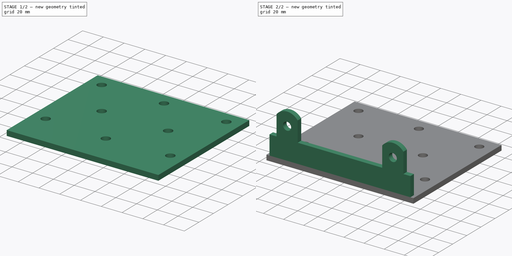
[diagram: build sequence overview — one tinted view per stage of 2, left to right]
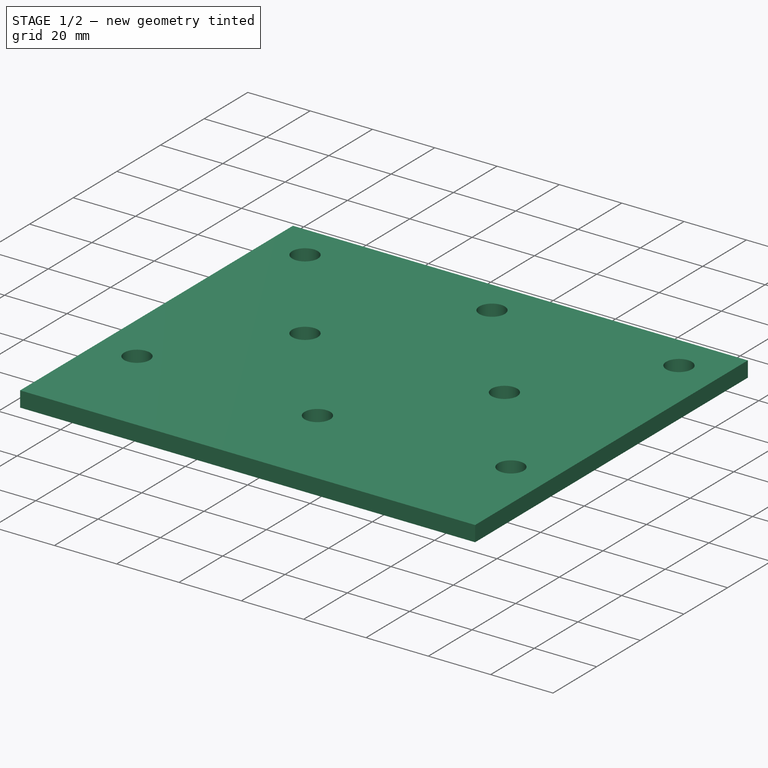
[diagram: stage 1 of 2 — iso view after this stage's code; geometry added in this stage tinted green]
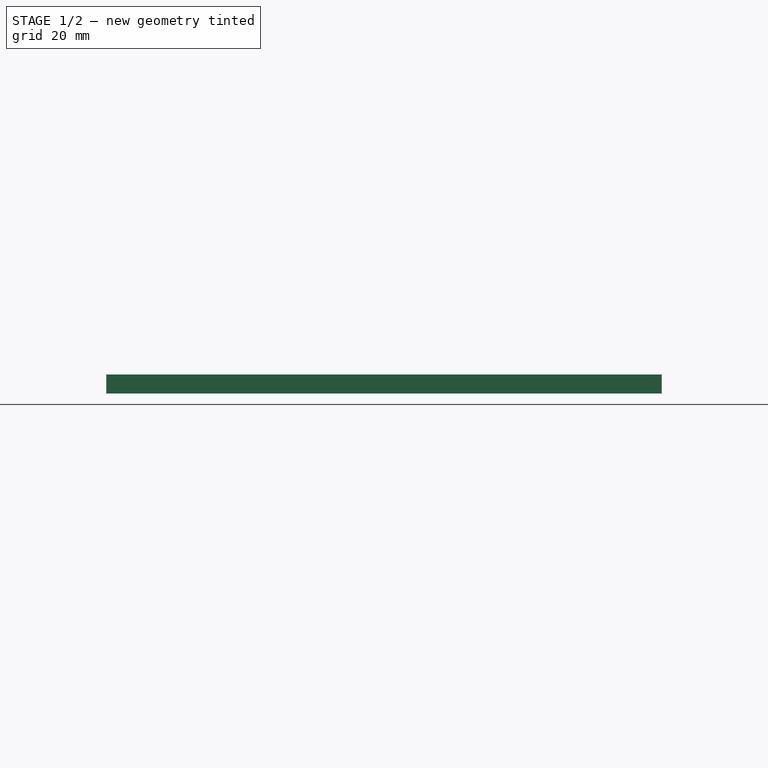
[diagram: stage 1 of 2 — front view after this stage's code; geometry added in this stage tinted green]
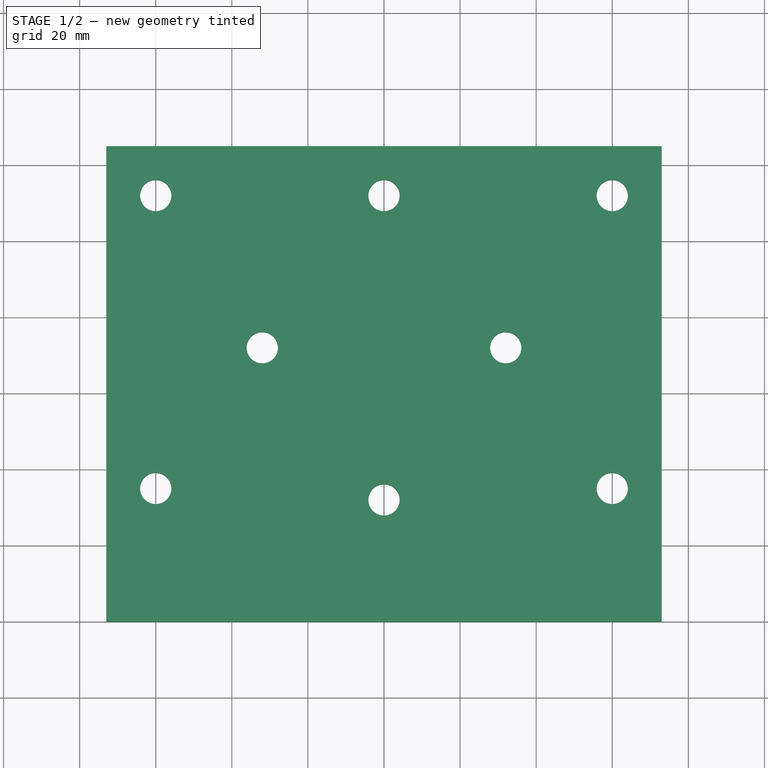
[diagram: stage 1 of 2 — top view after this stage's code; geometry added in this stage tinted green]
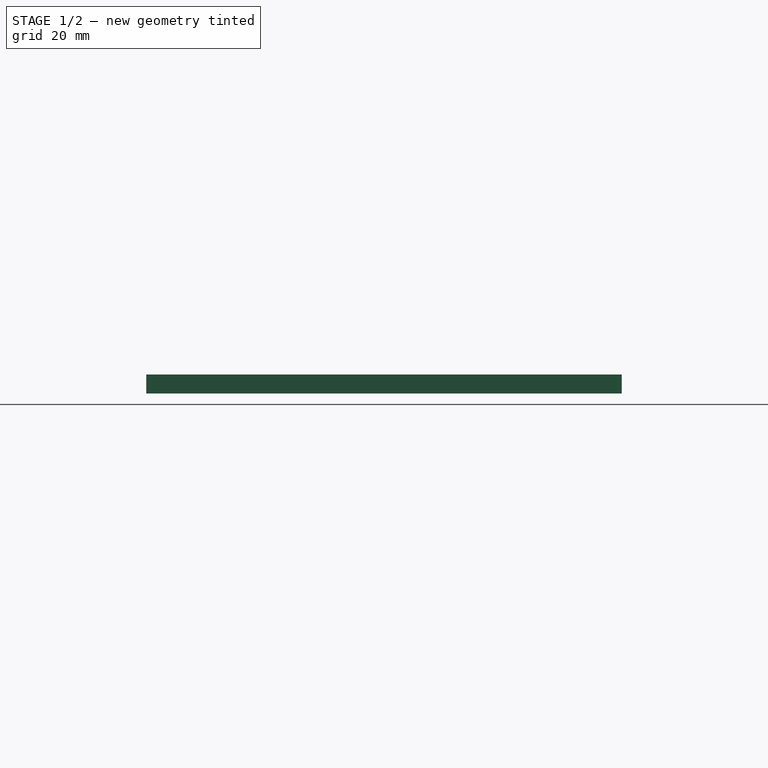
[diagram: stage 1 of 2 — right view after this stage's code; geometry added in this stage tinted green]
FCSTD DOCUMENT  (FreeCAD 0.18.4R)
Label: Winch-Model1-Mounting-Plate
License: All rights reserved
LicenseURL: http://en.wikipedia.org/wiki/All_rights_reserved
objects: Sketcher::SketchObject×2, PartDesign::Pad×2
note: 6 computed .brp shape members not serialized (recipe doc carries the construction recipe); baked Part::Feature solids carry a one-line shape summary decoded from their .brp

FEATURE [Sketcher::SketchObject] Sketch
  MapMode = 5
  sketch-geometry (12):
    g0: LineSegment StartX=-73 StartY=125 StartZ=0 EndX=73 EndY=125 EndZ=0
    g1: LineSegment StartX=73 StartY=125 StartZ=0 EndX=73 EndY=0 EndZ=0
    g2: LineSegment StartX=73 StartY=0 StartZ=0 EndX=-73 EndY=0 EndZ=0
    g3: LineSegment StartX=-73 StartY=0 StartZ=0 EndX=-73 EndY=125 EndZ=0
    g4: Circle CenterX=-60 CenterY=35 CenterZ=0 NormalX=0 NormalY=0 NormalZ=1 AngleXU=0 Radius=4.1
    g5: Circle CenterX=0 CenterY=32 CenterZ=0 NormalX=0 NormalY=0 NormalZ=1 AngleXU=0 Radius=4.1
    g6: Circle CenterX=60 CenterY=35 CenterZ=0 NormalX=0 NormalY=0 NormalZ=1 AngleXU=0 Radius=4.1
    g7: Circle CenterX=0 CenterY=112 CenterZ=0 NormalX=0 NormalY=0 NormalZ=1 AngleXU=0 Radius=4.1
    g8: Circle CenterX=-60 CenterY=112 CenterZ=0 NormalX=0 NormalY=0 NormalZ=1 AngleXU=0 Radius=4.1
    g9: Circle CenterX=60 CenterY=112 CenterZ=0 NormalX=0 NormalY=0 NormalZ=1 AngleXU=0 Radius=4.1
    g10: Circle CenterX=-32 CenterY=72 CenterZ=0 NormalX=0 NormalY=0 NormalZ=1 AngleXU=0 Radius=4.1
    g11: Circle CenterX=32 CenterY=72 CenterZ=0 NormalX=0 NormalY=0 NormalZ=1 AngleXU=0 Radius=4.1
  constraints (32):
    c: Coincident(g0,g1)
    c: Coincident(g1,g2)
    c: Coincident(g2,g3)
    c: Coincident(g3,g0)
    c: Horizontal(g0)
    c: Vertical(g1)
    c: Vertical(g3)
    c: DistanceY(g2,g0) = 125
    c: DistanceX(g2,g1) = 146
    c: PointOnObject(g2,g-1)
    c: Symmetric(g2,g1,g-2)
    c: PointOnObject(g5,g-2)
    c: PointOnObject(g7,g-2)
    c: Equal(g4,g5)
    c: Equal(g5,g6)
    c: Equal(g6,g11)
    c: Equal(g11,g10)
    c: Equal(g10,g8)
    c: Equal(g8,g7)
    c: Equal(g7,g9)
    c: Radius(g4) = 4.1
    c: DistanceY(g5,g7) = 80
    c: DistanceX(g10,g11) = 64
    c: Symmetric(g10,g11,g-2)
    c: DistanceY(g7,g8) = 0
    c: Symmetric(g8,g9,g-2)
    c: DistanceY(g8,g0) = 13
    c: DistanceY(g4,g8) = 77
    c: Symmetric(g4,g6,g-2)
    c: DistanceX(g8,g4) = 0
    c: DistanceY(g11,g7) = 40
    c: DistanceX(g8,g9) = 120
FEATURE [PartDesign::Pad] Pad
  Length = 5
  Length2 = 100
  Profile = -> Sketch
  Type = 0
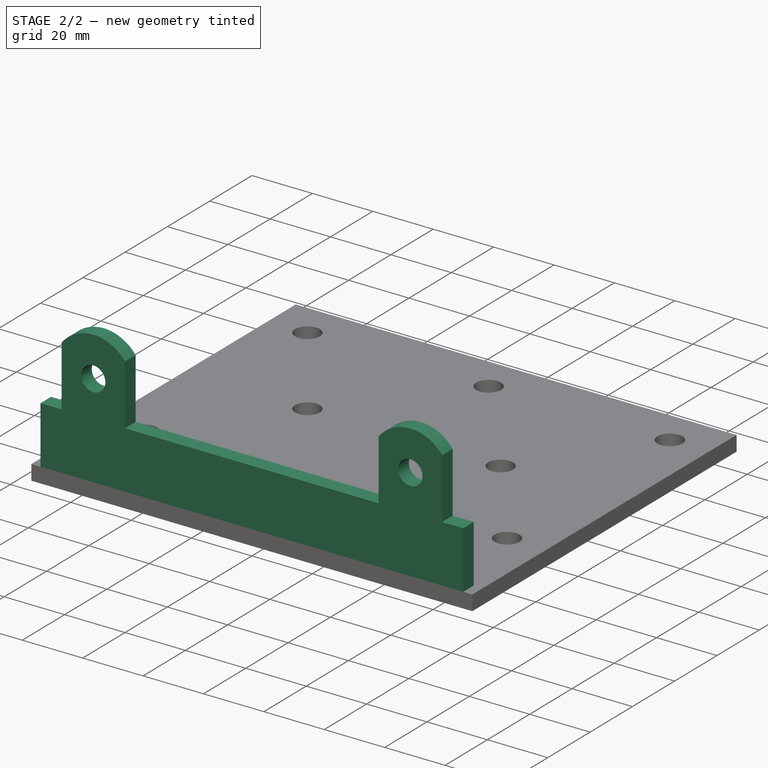
[diagram: stage 2 of 2 — iso view after this stage's code; geometry added in this stage tinted green]
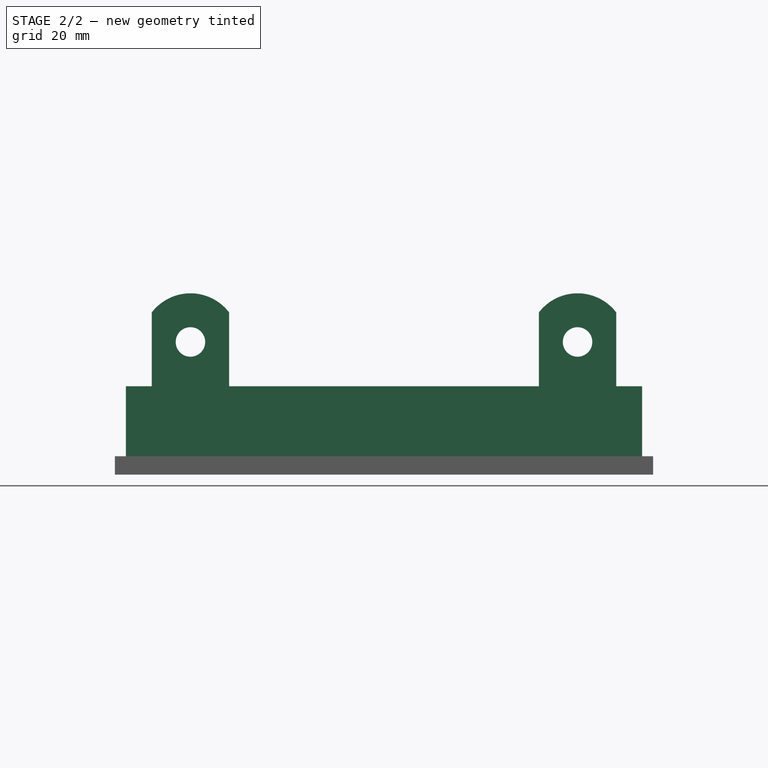
[diagram: stage 2 of 2 — front view after this stage's code; geometry added in this stage tinted green]
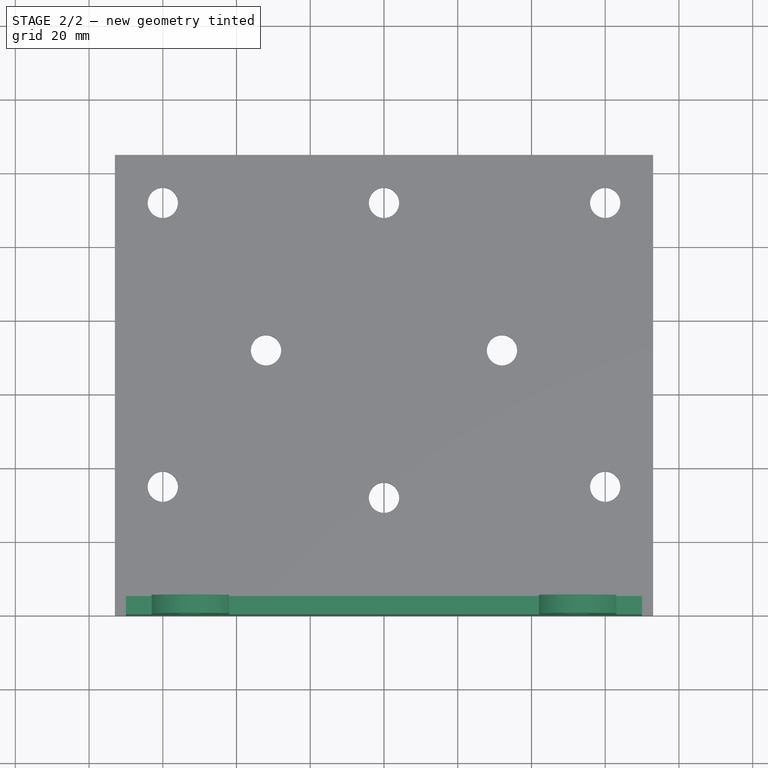
[diagram: stage 2 of 2 — top view after this stage's code; geometry added in this stage tinted green]
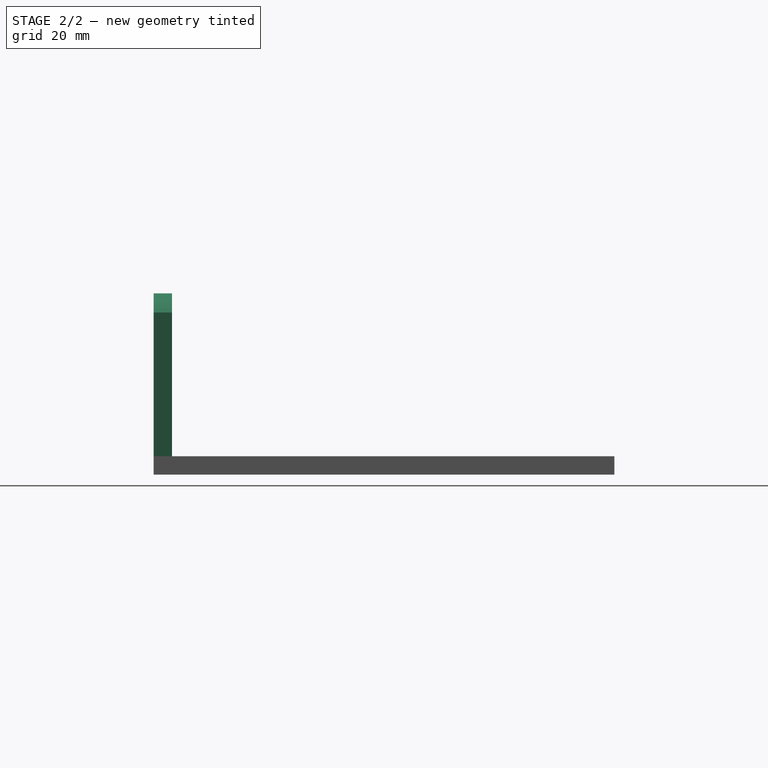
[diagram: stage 2 of 2 — right view after this stage's code; geometry added in this stage tinted green]
FEATURE [Sketcher::SketchObject] Sketch001
  MapMode = 5
  Placement = pos=(0,0,0) rot=(1,0,0;1.5708rad)
  Support = -> [Pad]
  sketch-geometry (14):
    g0: LineSegment StartX=-70 StartY=0 StartZ=0 EndX=70 EndY=0 EndZ=0
    g1: LineSegment StartX=-70 StartY=0 StartZ=0 EndX=-70 EndY=24 EndZ=0
    g2: LineSegment StartX=-70 StartY=24 StartZ=0 EndX=-63 EndY=24 EndZ=0
    g3: LineSegment StartX=-63 StartY=24 StartZ=0 EndX=-63 EndY=44 EndZ=0
    g4: LineSegment StartX=-42 StartY=24 StartZ=0 EndX=-42 EndY=44 EndZ=0
    g5: LineSegment StartX=-42 StartY=24 StartZ=0 EndX=42 EndY=24 EndZ=0
    g6: LineSegment StartX=42 StartY=24 StartZ=0 EndX=42 EndY=44 EndZ=0
    g7: LineSegment StartX=70 StartY=0 StartZ=0 EndX=70 EndY=24 EndZ=0
    g8: LineSegment StartX=70 StartY=24 StartZ=0 EndX=63 EndY=24 EndZ=0
    g9: LineSegment StartX=63 StartY=24 StartZ=0 EndX=63 EndY=44 EndZ=0
    g10: ArcOfCircle CenterX=-52.5 CenterY=36 CenterZ=0 NormalX=0 NormalY=0 NormalZ=1 AngleXU=0 Radius=13.2004 StartAngle=0.651077 EndAngle=2.49052
    g11: ArcOfCircle CenterX=52.5 CenterY=36 CenterZ=0 NormalX=0 NormalY=0 NormalZ=1 AngleXU=0 Radius=13.2004 StartAngle=0.651077 EndAngle=2.49052
    g12: Circle CenterX=-52.5 CenterY=36 CenterZ=0 NormalX=0 NormalY=0 NormalZ=1 AngleXU=0 Radius=4
    g13: Circle CenterX=52.5 CenterY=36 CenterZ=0 NormalX=0 NormalY=0 NormalZ=1 AngleXU=0 Radius=4
  constraints (37):
    c: Coincident(g1,g0)
    c: Vertical(g1)
    c: Coincident(g2,g1)
    c: Horizontal(g2)
    c: Coincident(g3,g2)
    c: Vertical(g3)
    c: Vertical(g4)
    c: Coincident(g5,g4)
    c: Coincident(g6,g5)
    c: Vertical(g6)
    c: Coincident(g7,g0)
    c: Vertical(g7)
    c: Coincident(g8,g7)
    c: Horizontal(g8)
    c: Coincident(g9,g8)
    c: Coincident(g10,g3)
    c: Coincident(g10,g4)
    c: Coincident(g11,g6)
    c: Coincident(g11,g9)
    c: PointOnObject(g0,g-1)
    c: DistanceX(g0,g0) = 140
    c: Symmetric(g0,g0,g-2)
    c: DistanceY(g0,g1) = 24
    c: DistanceY(g0,g10) = 36
    c: DistanceX(g1,g2) = 7
    c: DistanceY(g0,g3) = 44
    c: DistanceY(g0,g4) = 44
    c: DistanceX(g10,g11) = 105
    c: Symmetric(g10,g11,g-2)
    c: Symmetric(g3,g9,g-2)
    c: Symmetric(g4,g5,g-2)
    c: Symmetric(g2,g8,g-2)
    c: DistanceY(g0,g4) = 24
    c: Coincident(g12,g10)
    c: Coincident(g13,g11)
    c: Equal(g12,g13)
    c: Radius(g12) = 4
FEATURE [PartDesign::Pad] Pad001
  Length = 5
  Length2 = 100
  Profile = -> Sketch001
  Reversed = true
  Type = 0
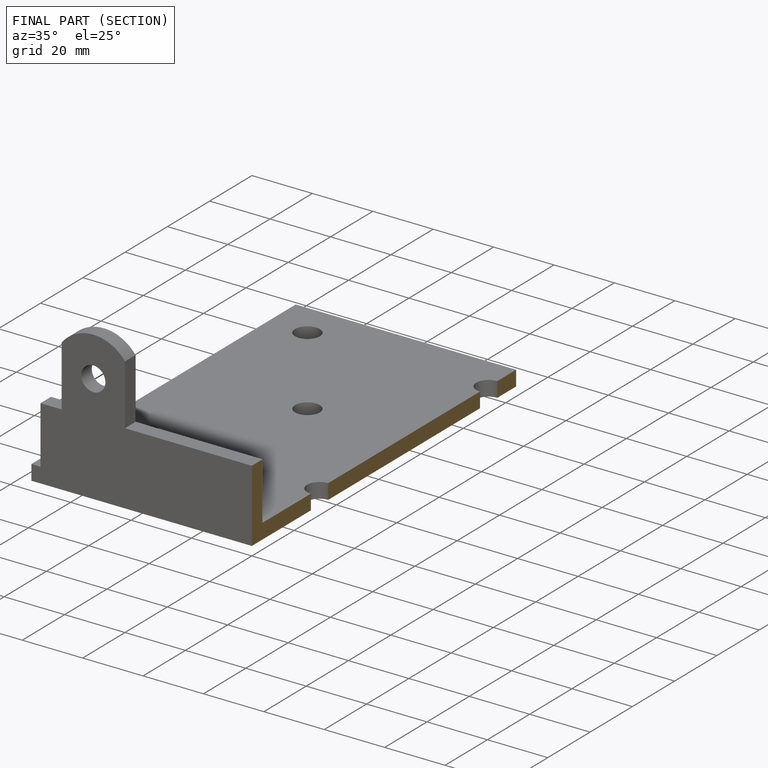
[diagram: finished part — half-section view (interior)]
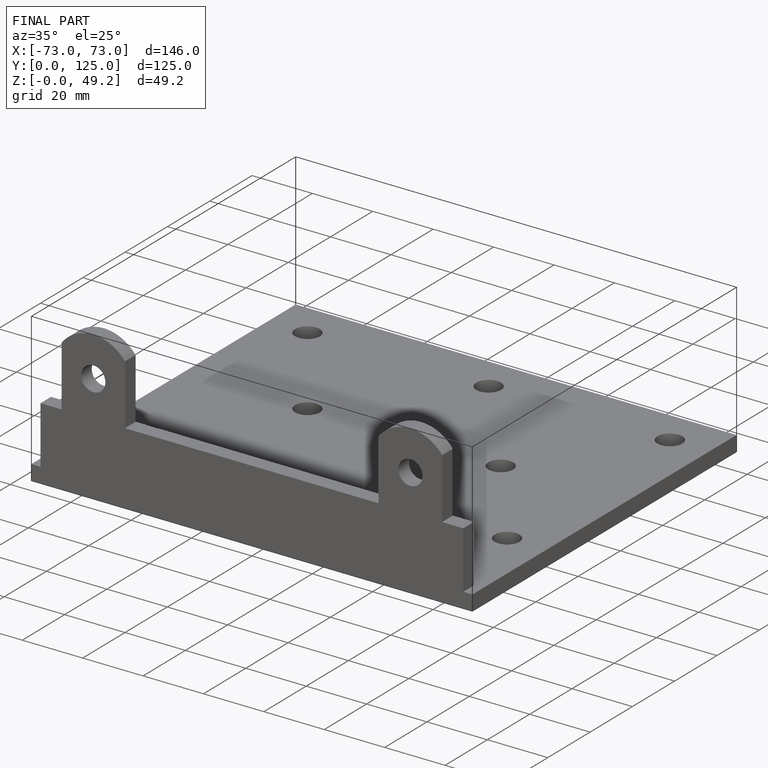
[diagram: finished part — iso view with bounding-box wireframe]
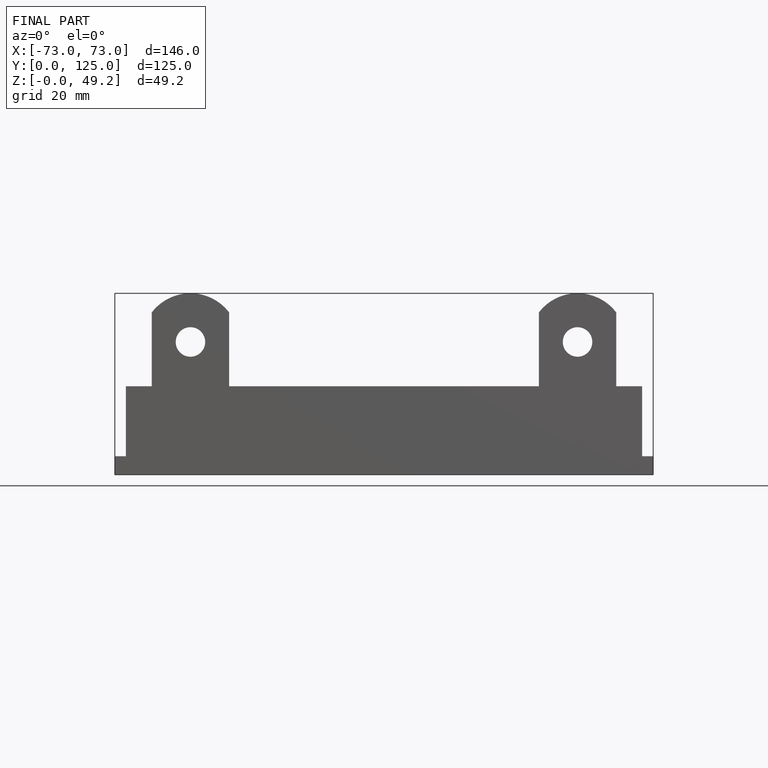
[diagram: finished part — front view with bounding-box wireframe]
